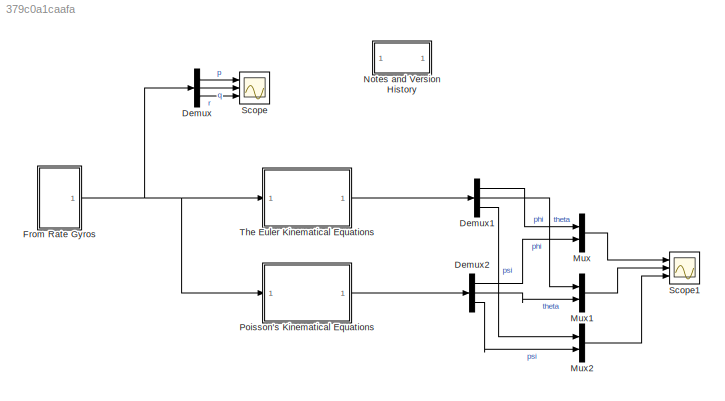
MODEL slx_379c0a1caafa
KIND model
CONFIG AbsTol = auto
CONFIG EnableMultiTasking = off
CONFIG FixedStep = .05
CONFIG MaxStep = auto
CONFIG MinStep = auto
CONFIG RelTol = 1e-3
CONFIG SampleTimeConstraint = Unconstrained
CONFIG SolverName = FixedStepAuto
CONFIG StartTime = 0.0
CONFIG StopTime = 100
BLOCK [Demux] Demux
  Outputs = 3
  Ports = [1, 3]
BLOCK [Demux] Demux1
  Outputs = 3
  Ports = [1, 3]
BLOCK [Demux] Demux2
  Outputs = 3
  Ports = [1, 3]
BLOCK [SubSystem] From Rate Gyros
  Ports = [0, 1]
  RequestExecContextInheritance = off
BLOCK [FromWorkspace] From Rate Gyros/From Workspace
  VariableName = [t p]
BLOCK [FromWorkspace] From Rate Gyros/From Workspace1
  VariableName = [t q]
BLOCK [FromWorkspace] From Rate Gyros/From Workspace2
  VariableName = [t r]
BLOCK [Mux] From Rate Gyros/Mux
  DisplayOption = bar
  Inputs = 3
  Ports = [3, 1]
BLOCK [Outport] From Rate Gyros/wbv_b
  VectorParamsAs1DForOutWhenUnconnected = off
BLOCK [Mux] Mux
  DisplayOption = bar
  Inputs = 2
  Ports = [2, 1]
BLOCK [Mux] Mux1
  DisplayOption = bar
  Inputs = 2
  Ports = [2, 1]
BLOCK [Mux] Mux2
  DisplayOption = bar
  Inputs = 2
  Ports = [2, 1]
BLOCK [SubSystem] Notes and Version History
  Ports = []
  RequestExecContextInheritance = off
BLOCK [SubSystem] Poisson's Kinematical Equations
  Ports = [1, 1]
  RequestExecContextInheritance = off
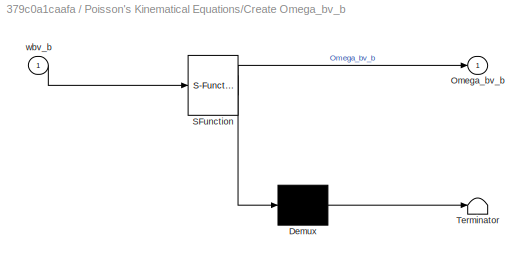
BLOCK [SubSystem] Poisson's Kinematical Equations/Create Omega_bv_b
  ErrorFcn = Stateflow.Translate.translate
  PermitHierarchicalResolution = ExplicitOnly
  Ports = [1, 1]
  RequestExecContextInheritance = off
  SFBlockType = MATLAB Function
  TreatAsAtomicUnit = on
BLOCK [Demux] Poisson's Kinematical Equations/Create Omega_bv_b/ Demux 
  Outputs = 1
  Ports = [1, 1]
BLOCK [S-Function] Poisson's Kinematical Equations/Create Omega_bv_b/ SFunction 
  EnableBusSupport = on
  FunctionName = sf_sfun
  PortCounts = [1 2]
  Ports = [1, 2]
  SFcnIsStateOwnerBlock = off
  SFunctionDeploymentMode = off
  Tag = Stateflow S-Function 1
BLOCK [Terminator] Poisson's Kinematical Equations/Create Omega_bv_b/ Terminator 
BLOCK [Outport] Poisson's Kinematical Equations/Create Omega_bv_b/Omega_bv_b
  VectorParamsAs1DForOutWhenUnconnected = off
BLOCK [Inport] Poisson's Kinematical Equations/Create Omega_bv_b/wbv_b
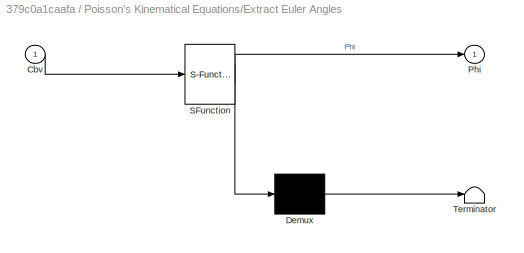
BLOCK [SubSystem] Poisson's Kinematical Equations/Extract Euler Angles
  ErrorFcn = Stateflow.Translate.translate
  PermitHierarchicalResolution = ExplicitOnly
  Ports = [1, 1]
  RequestExecContextInheritance = off
  SFBlockType = MATLAB Function
  TreatAsAtomicUnit = on
BLOCK [Demux] Poisson's Kinematical Equations/Extract Euler Angles/ Demux 
  Outputs = 1
  Ports = [1, 1]
BLOCK [S-Function] Poisson's Kinematical Equations/Extract Euler Angles/ SFunction 
  EnableBusSupport = on
  FunctionName = sf_sfun
  PortCounts = [1 2]
  Ports = [1, 2]
  SFcnIsStateOwnerBlock = off
  SFunctionDeploymentMode = off
  Tag = Stateflow S-Function 4
BLOCK [Terminator] Poisson's Kinematical Equations/Extract Euler Angles/ Terminator 
BLOCK [Inport] Poisson's Kinematical Equations/Extract Euler Angles/Cbv
BLOCK [Outport] Poisson's Kinematical Equations/Extract Euler Angles/Phi
  VectorParamsAs1DForOutWhenUnconnected = off
BLOCK [Gain] Poisson's Kinematical Equations/Gain
  Gain = -1
BLOCK [Integrator] Poisson's Kinematical Equations/Integrator
  InitialCondition = Cbv0
  Ports = [1, 1]
BLOCK [Product] Poisson's Kinematical Equations/Matrix Multiply
  Multiplication = Matrix(*)
  Ports = [2, 1]
BLOCK [Outport] Poisson's Kinematical Equations/Phi
  VectorParamsAs1DForOutWhenUnconnected = off
BLOCK [Inport] Poisson's Kinematical Equations/wbv_b
BLOCK [Scope] Scope
  Floating = off
  NumInputPorts = 3
  Ports = [3]
  ScopeSpecificationString = Simulink.scopes.TimeScopeBlockCfg('CurrentConfiguration', extmgr.ConfigurationSet(extmgr.Configuration('Core','General UI',true),extmgr.Configuration('Core','Source UI',true),extmgr.Configuration('Sources','WiredSimulink',true),extmgr.Configuration('Visuals','Time Domain',true,'SerializedDisplays',{struct('MinYLimReal','-0.17699','MaxYLimReal','0.14035','YLabelReal','','MinYLimMag','0.00000','MaxY...<+2715ch>
BLOCK [Scope] Scope1
  Floating = off
  NumInputPorts = 3
  Ports = [3]
  ScopeSpecificationString = Simulink.scopes.TimeScopeBlockCfg('CurrentConfiguration', extmgr.ConfigurationSet(extmgr.Configuration('Core','General UI',true),extmgr.Configuration('Core','Source UI',true),extmgr.Configuration('Sources','WiredSimulink',true,'DataLoggingVariableName','ScopeData1'),extmgr.Configuration('Visuals','Time Domain',true,'SerializedDisplays',{struct('MinYLimReal','-0.13336','MaxYLimReal','1.20028','YLab...<+2756ch>
BLOCK [SubSystem] The Euler Kinematical Equations
  Ports = [1, 1]
  RequestExecContextInheritance = off
BLOCK [SubSystem] The Euler Kinematical Equations/Calculate H Matrix
  ErrorFcn = Stateflow.Translate.translate
  PermitHierarchicalResolution = ExplicitOnly
  Ports = [1, 1]
  RequestExecContextInheritance = off
  SFBlockType = MATLAB Function
  TreatAsAtomicUnit = on
BLOCK [Demux] The Euler Kinematical Equations/Calculate H Matrix/ Demux 
  Outputs = 1
  Ports = [1, 1]
BLOCK [S-Function] The Euler Kinematical Equations/Calculate H Matrix/ SFunction 
  EnableBusSupport = on
  FunctionName = sf_sfun
  PortCounts = [1 2]
  Ports = [1, 2]
  SFcnIsStateOwnerBlock = off
  SFunctionDeploymentMode = off
  Tag = Stateflow S-Function 2
BLOCK [Terminator] The Euler Kinematical Equations/Calculate H Matrix/ Terminator 
BLOCK [Outport] The Euler Kinematical Equations/Calculate H Matrix/H
  VectorParamsAs1DForOutWhenUnconnected = off
BLOCK [Inport] The Euler Kinematical Equations/Calculate H Matrix/Phi
BLOCK [Integrator] The Euler Kinematical Equations/Integrator
  InitialCondition = [phi0;theta0;psi0]
  Ports = [1, 1]
BLOCK [Product] The Euler Kinematical Equations/Matrix Multiply
  Multiplication = Matrix(*)
  Ports = [2, 1]
BLOCK [Outport] The Euler Kinematical Equations/Phi
  VectorParamsAs1DForOutWhenUnconnected = off
BLOCK [Inport] The Euler Kinematical Equations/wbv_b
ANNOTATION Notes and Version History: Illustrate Euler Kinematical Equations and Poisson's Kinematical Equations Christopher Lum <email> Version History 03/30/20: Created 12/23/23: Moved to YouTube GitHub
LINE Demux1:1 -> Mux:1
LINE Demux1:2 -> Mux1:1
LINE Demux1:3 -> Mux2:1
LINE Demux2:1 -> Mux:2
LINE Demux2:2 -> Mux1:2
LINE Demux2:3 -> Mux2:2
LINE Demux:1 -> Scope:1
LINE Demux:2 -> Scope:2
LINE Demux:3 -> Scope:3
LINE From Rate Gyros/From Workspace1:1 -> From Rate Gyros/Mux:2
LINE From Rate Gyros/From Workspace2:1 -> From Rate Gyros/Mux:3
LINE From Rate Gyros/From Workspace:1 -> From Rate Gyros/Mux:1
LINE From Rate Gyros/Mux:1 -> From Rate Gyros/wbv_b:1
NET From Rate Gyros:1 -> Demux:1, Poisson's Kinematical Equations:1, The Euler Kinematical Equations:1
LINE Mux1:1 -> Scope1:2
LINE Mux2:1 -> Scope1:3
LINE Mux:1 -> Scope1:1
LINE Poisson's Kinematical Equations/Create Omega_bv_b:1 -> Poisson's Kinematical Equations/Matrix Multiply:1
LINE Poisson's Kinematical Equations/Extract Euler Angles:1 -> Poisson's Kinematical Equations/Phi:1
LINE Poisson's Kinematical Equations/Gain:1 -> Poisson's Kinematical Equations/Integrator:1
NET Poisson's Kinematical Equations/Integrator:1 -> Poisson's Kinematical Equations/Extract Euler Angles:1, Poisson's Kinematical Equations/Matrix Multiply:2
LINE Poisson's Kinematical Equations/Matrix Multiply:1 -> Poisson's Kinematical Equations/Gain:1
LINE Poisson's Kinematical Equations/wbv_b:1 -> Poisson's Kinematical Equations/Create Omega_bv_b:1
LINE Poisson's Kinematical Equations:1 -> Demux2:1
LINE The Euler Kinematical Equations/Calculate H Matrix:1 -> The Euler Kinematical Equations/Matrix Multiply:1
NET The Euler Kinematical Equations/Integrator:1 -> The Euler Kinematical Equations/Calculate H Matrix:1, The Euler Kinematical Equations/Phi:1
LINE The Euler Kinematical Equations/Matrix Multiply:1 -> The Euler Kinematical Equations/Integrator:1
LINE The Euler Kinematical Equations/wbv_b:1 -> The Euler Kinematical Equations/Matrix Multiply:2
LINE The Euler Kinematical Equations:1 -> Demux1:1
note: NET lines group one-source signal fan-out (src -> all destinations, sorted); 1:1 wires keep LINE
CHART The Euler Kinematical Equations/Calculate H Matrix states=1 transitions=1
  STATE_LABEL 'eML_blk_kernel()'
  STATE_LABEL 'SCRIPT:\nfunction H = fcn(Phi)\n\n%Unpack Phi\nphi     = Phi(1);\ntheta   = Phi(2);\npsi     = Phi(3);\n\n%Input the H matrix\nH = [1 tan(theta)*sin(phi) tan(theta)*cos(phi);\n    0 cos(phi) -sin(phi);\n    0 sin(phi)/cos(theta) cos(phi)/cos(theta)];\n'
CHART Poisson's Kinematical Equations/Extract Euler Angles states=1 transitions=1
  STATE_LABEL 'eML_blk_kernel()'
  STATE_LABEL 'SCRIPT:\nfunction Phi = fcn(Cbv)\n\nc11 = Cbv(1,1);\nc13 = Cbv(1,3);\nc12 = Cbv(1,2);\nc23 = Cbv(2,3);\nc33 = Cbv(3,3);\n\nphi     = atan2(c23,c33);\ntheta   = -asin(c13);\npsi2    = atan2(c12,c11);   %avoid problem with function called psi\n\nPhi = [phi;theta;psi2];'
CHART Poisson's Kinematical Equations/Create Omega_bv_b states=1 transitions=1
  STATE_LABEL 'eML_blk_kernel()'
  STATE_LABEL 'SCRIPT:\nfunction Omega_bv_b = fcn(wbv_b)\n\np = wbv_b(1);\nq = wbv_b(2);\nr = wbv_b(3);\n\nOmega_bv_b = [0 -r q;\n    r 0 -p;\n    -q p 0];\n'
CHART  states=0 transitions=0
CHART  states=0 transitions=0
CHART  states=0 transitions=0
